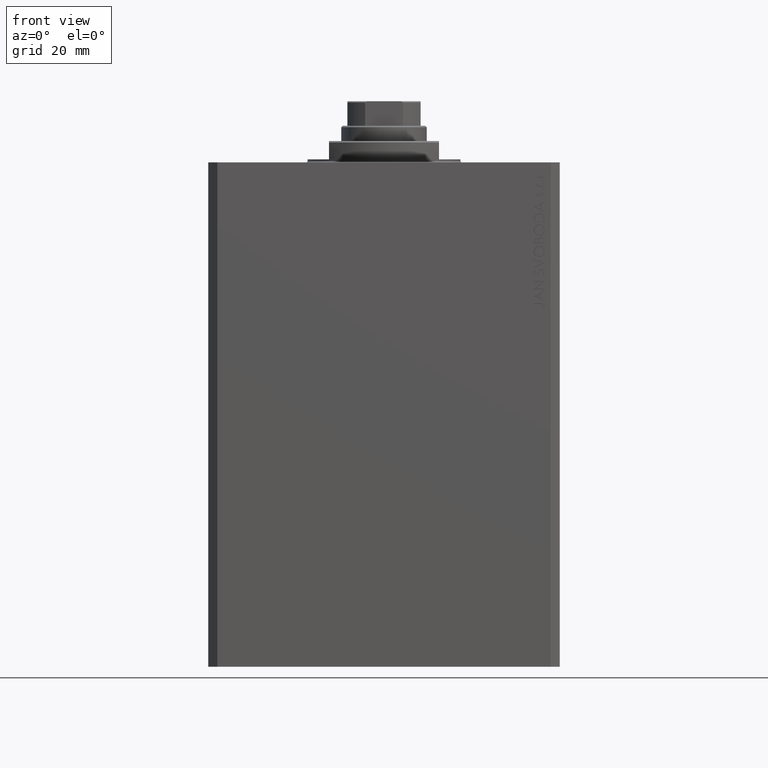
[diagram: clean part render]
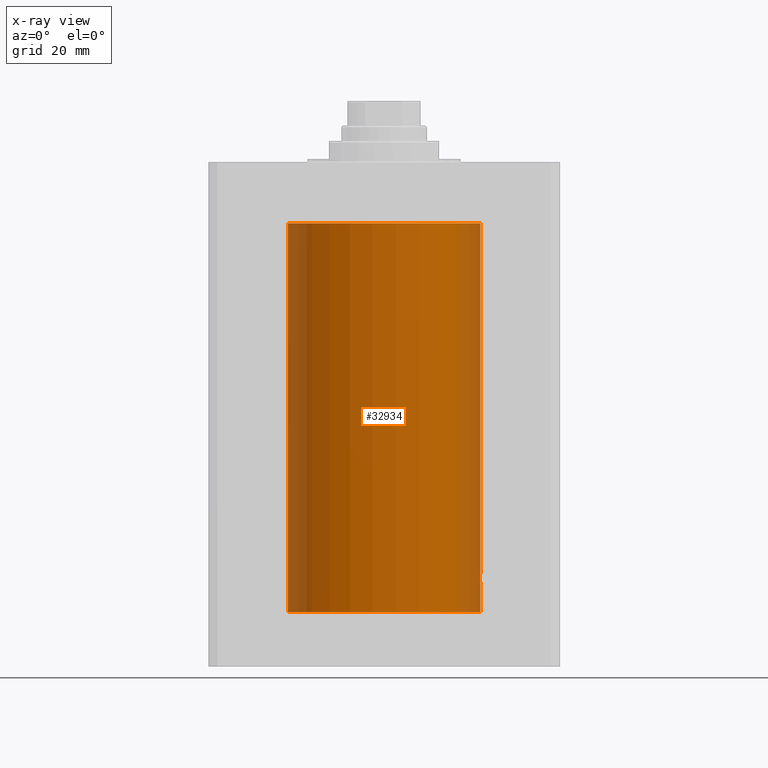
[diagram: x-ray — body ghosted, one internal face saturated and labeled with its STEP entity id]
A machine part, front view, then the same camera in x-ray: the body is ghosted and one INTERNAL B-rep face — a face not visible from any outside direction — is saturated and labeled: STEP entity #32934.
In plain terms, the highlighted cylindrical surface (partial cylindrical patch) has radius 31.5 mm, axis along (0, 0, 1).
Its self-contained STEP definition (entity closure, byte-faithful):
#5 = ORIENTED_EDGE ( 'NONE', *, *, #20285, .T. ) ;
#96 = LINE ( 'NONE', #25476, #17125 ) ;
#360 = DIRECTION ( 'NONE',  ( 0.000000000000000000, 0.000000000000000000, 1.000000000000000000 ) ) ;
#407 = CARTESIAN_POINT ( 'NONE',  ( -31.45217525070748721, -1.736644018522236488, -27.99943934275634305 ) ) ;
#1467 = VERTEX_POINT ( 'NONE', #9283 ) ;
#1977 = CARTESIAN_POINT ( 'NONE',  ( 31.50000000000000000, -0.2641644753935966095, -137.9999999999999432 ) ) ;
#2424 = CARTESIAN_POINT ( 'NONE',  ( -31.50000000000000000, 3.857637417314162689E-15, -147.0999999999999943 ) ) ;
#2546 = DIRECTION ( 'NONE',  ( -0.000000000000000000, -0.000000000000000000, 1.000000000000000000 ) ) ;
#3036 = CIRCLE ( 'NONE', #39714, 31.50000000000000000 ) ;
#3475 = VERTEX_POINT ( 'NONE', #26924 ) ;
#3476 = CARTESIAN_POINT ( 'NONE',  ( -31.50000000000000000, 1.397936845058764387E-14, -27.00000000000000000 ) ) ;
#3713 = VERTEX_POINT ( 'NONE', #11319 ) ;
#3765 = CARTESIAN_POINT ( 'NONE',  ( -31.46404664885025326, -1.507410583550298888, -27.67911419226929226 ) ) ;
#3802 = DIRECTION ( 'NONE',  ( 1.000000000000000000, 0.000000000000000000, 0.000000000000000000 ) ) ;
#3936 = ORIENTED_EDGE ( 'NONE', *, *, #43919, .F. ) ;
#5643 = CARTESIAN_POINT ( 'NONE',  ( 31.48485268472538223, -1.006016242866562438, -134.2518986956447122 ) ) ;
#5659 = LINE ( 'NONE', #20034, #16552 ) ;
#6437 = CARTESIAN_POINT ( 'NONE',  ( 31.50000000000000000, -8.369814204394935255E-24, -134.0000000000000000 ) ) ;
#7389 = CYLINDRICAL_SURFACE ( 'NONE', #11340, 31.50000000000000000 ) ;
#7589 = CARTESIAN_POINT ( 'NONE',  ( -31.44875398393470789, -1.796776260624483479, -29.88811294768924753 ) ) ;
#7818 = CARTESIAN_POINT ( 'NONE',  ( -31.45983898797870992, -1.591788710457754608, -27.78210723905913682 ) ) ;
#8045 = CARTESIAN_POINT ( 'NONE',  ( -31.45225007357219127, -1.735298606275290645, -30.00291301244936193 ) ) ;
#8285 = CARTESIAN_POINT ( 'NONE',  ( -31.43643703231417774, -2.000106678383414049, -28.86966175168553406 ) ) ;
#8590 = B_SPLINE_CURVE_WITH_KNOTS ( 'NONE', 3,
 ( #12749, #20161, #38819, #42645, #12990, #17281, #16340, #13221, #9169, #24705, #20641, #34751, #35230, #23996, #1977, #16582 ),
 .UNSPECIFIED., .F., .F.,
 ( 4, 2, 2, 2, 2, 2, 2, 4 ),
 ( 0.009382615871551879677, 0.009773230820200042371, 0.01016384576884820333, 0.01055446071749636602, 0.01094507566614452698, 0.01133569061479268794, 0.01172630556344085064, 0.01250753546073714306 ),
 .UNSPECIFIED. ) ;
#9169 = CARTESIAN_POINT ( 'NONE',  ( 31.46407444263389053, -1.506829553733668670, -137.3215416408483520 ) ) ;
#9283 = CARTESIAN_POINT ( 'NONE',  ( 31.50000000000000000, 0.000000000000000000, -19.99999999999998934 ) ) ;
#9476 = CARTESIAN_POINT ( 'NONE',  ( 31.43644381923633446, -1.999999999999602318, -135.8679496573550409 ) ) ;
#9536 = ORIENTED_EDGE ( 'NONE', *, *, #17535, .T. ) ;
#9660 = CARTESIAN_POINT ( 'NONE',  ( -31.50000000000000000, 3.857637417314162689E-15, -147.0999999999999943 ) ) ;
#9719 = CARTESIAN_POINT ( 'NONE',  ( 31.44872486828352720, -1.797284557493793455, -135.1129049671613700 ) ) ;
#10104 = VECTOR ( 'NONE', #24519, 1000.000000000000000 ) ;
#10652 = ORIENTED_EDGE ( 'NONE', *, *, #44055, .F. ) ;
#10819 = B_SPLINE_CURVE_WITH_KNOTS ( 'NONE', 3,
 ( #11882, #40600, #19289, #43732, #25792, #26492, #18599, #8045, #7589, #15699, #36771, #40829, #29619, #8285, #36531, #29386, #11648, #33198, #407, #7818, #3765, #37233, #44208, #26253, #40126, #43974, #18370, #32968 ),
 .UNSPECIFIED., .F., .F.,
 ( 4, 2, 2, 2, 2, 2, 2, 2, 2, 2, 2, 2, 2, 4 ),
 ( 0.006254484652153074857, 0.007036116003226081106, 0.007817747354299088222, 0.008208563029835592648, 0.008599378705372095338, 0.008990194380908599764, 0.009381010056445102455, 0.009771825731981605145, 0.01016264140751810957, 0.01055345708305461400, 0.01094427275859111495, 0.01133508843412761938, 0.01172590410966412207, 0.01250753546073712918 ),
 .UNSPECIFIED. ) ;
#11109 = DIRECTION ( 'NONE',  ( -0.000000000000000000, -0.000000000000000000, 1.000000000000000000 ) ) ;
#11319 = CARTESIAN_POINT ( 'NONE',  ( 31.50000000000000000, 0.000000000000000000, -147.0999999999999943 ) ) ;
#11340 = AXIS2_PLACEMENT_3D ( 'NONE', #11687, #26068, #3802 ) ;
#11648 = CARTESIAN_POINT ( 'NONE',  ( -31.44278916585178862, -1.898297317516837390, -28.35682010174544843 ) ) ;
#11687 = CARTESIAN_POINT ( 'NONE',  ( 0.000000000000000000, 0.000000000000000000, -147.0999999999999943 ) ) ;
#11882 = CARTESIAN_POINT ( 'NONE',  ( -31.50000000000000000, 3.857637408943224358E-15, -30.99999999999999645 ) ) ;
#12749 = CARTESIAN_POINT ( 'NONE',  ( 31.43644381923632736, -1.999999999999602318, -136.0000000000000000 ) ) ;
#12837 = CARTESIAN_POINT ( 'NONE',  ( 31.50000000000000711, -0.2611678296587149894, -134.0000000000000853 ) ) ;
#12963 = VERTEX_POINT ( 'NONE', #3476 ) ;
#12990 = CARTESIAN_POINT ( 'NONE',  ( 31.44281458444440958, -1.897877411374707002, -136.6444022018092426 ) ) ;
#13070 = CARTESIAN_POINT ( 'NONE',  ( 31.45990289235032478, -1.590535423469526366, -134.7804472770964423 ) ) ;
#13221 = CARTESIAN_POINT ( 'NONE',  ( 31.45986829311680921, -1.591210340082439334, -137.2186416612216533 ) ) ;
#13543 = CARTESIAN_POINT ( 'NONE',  ( 31.43644381923632736, -1.999999999999602318, -136.0000000000000000 ) ) ;
#13793 = EDGE_CURVE ( 'NONE', #35819, #45264, #5659, .T. ) ;
#15699 = CARTESIAN_POINT ( 'NONE',  ( -31.44285297002221569, -1.897242519647255321, -29.64623553000395972 ) ) ;
#16109 = ORIENTED_EDGE ( 'NONE', *, *, #38223, .T. ) ;
#16340 = CARTESIAN_POINT ( 'NONE',  ( 31.45220500162104571, -1.736105959509580687, -137.0014858672019784 ) ) ;
#16552 = VECTOR ( 'NONE', #2546, 1000.000000000000000 ) ;
#16582 = CARTESIAN_POINT ( 'NONE',  ( 31.50000000000000000, -5.244345426788806144E-15, -138.0000000000000000 ) ) ;
#17125 = VECTOR ( 'NONE', #11109, 1000.000000000000000 ) ;
#17281 = CARTESIAN_POINT ( 'NONE',  ( 31.44871262113419519, -1.797498854984190153, -136.8866739720062640 ) ) ;
#17535 = EDGE_CURVE ( 'NONE', #3475, #23004, #8590, .T. ) ;
#17808 = CARTESIAN_POINT ( 'NONE',  ( 31.50000000000000000, 0.000000000000000000, -147.0999999999999943 ) ) ;
#18370 = CARTESIAN_POINT ( 'NONE',  ( -31.50000000000000000, -0.2643002226642394148, -26.99999999999999289 ) ) ;
#18599 = CARTESIAN_POINT ( 'NONE',  ( -31.45993227857327312, -1.589955021705260263, -30.22030274622138535 ) ) ;
#19116 = VECTOR ( 'NONE', #35206, 1000.000000000000000 ) ;
#19289 = CARTESIAN_POINT ( 'NONE',  ( -31.49655899566844397, -0.5241554089610698242, -30.94759297982581714 ) ) ;
#19634 = CARTESIAN_POINT ( 'NONE',  ( -31.50000000000000000, 3.857637408943224358E-15, -30.99999999999999645 ) ) ;
#20034 = CARTESIAN_POINT ( 'NONE',  ( -31.50000000000000000, 3.857637417314162689E-15, -147.0999999999999943 ) ) ;
#20161 = CARTESIAN_POINT ( 'NONE',  ( 31.43644381923634157, -1.999999999999603206, -136.1319147674916223 ) ) ;
#20285 = EDGE_CURVE ( 'NONE', #40481, #3475, #39180, .T. ) ;
#20641 = CARTESIAN_POINT ( 'NONE',  ( 31.47648100377268321, -1.221906821746976179, -137.5887658252282222 ) ) ;
#21700 = CARTESIAN_POINT ( 'NONE',  ( 31.50000000000000000, -5.244345426788806144E-15, -138.0000000000000000 ) ) ;
#22427 = ORIENTED_EDGE ( 'NONE', *, *, #13793, .T. ) ;
#23004 = VERTEX_POINT ( 'NONE', #21700 ) ;
#23810 = CARTESIAN_POINT ( 'NONE',  ( 0.000000000000000000, 0.000000000000000000, -147.0999999999999943 ) ) ;
#23996 = CARTESIAN_POINT ( 'NONE',  ( 31.49651623355826402, -0.5266027764248490950, -137.9469130230595226 ) ) ;
#24519 = DIRECTION ( 'NONE',  ( -0.000000000000000000, -0.000000000000000000, 1.000000000000000000 ) ) ;
#24705 = CARTESIAN_POINT ( 'NONE',  ( 31.47236300924845764, -1.322453193766295554, -137.5060296022319619 ) ) ;
#24882 = FACE_OUTER_BOUND ( 'NONE', #39576, .T. ) ;
#25467 = DIRECTION ( 'NONE',  ( 1.000000000000000000, 0.000000000000000000, 0.000000000000000000 ) ) ;
#25476 = CARTESIAN_POINT ( 'NONE',  ( 31.50000000000000000, 0.000000000000000000, -147.0999999999999943 ) ) ;
#25792 = CARTESIAN_POINT ( 'NONE',  ( -31.47656828341634849, -1.228722494291965672, -30.59944629484386525 ) ) ;
#26068 = DIRECTION ( 'NONE',  ( -0.000000000000000000, -0.000000000000000000, 1.000000000000000000 ) ) ;
#26253 = CARTESIAN_POINT ( 'NONE',  ( -31.48417770553094286, -1.004227724430747370, -27.26541759009648302 ) ) ;
#26444 = CARTESIAN_POINT ( 'NONE',  ( 0.000000000000000000, 0.000000000000000000, -19.99999999999998934 ) ) ;
#26492 = CARTESIAN_POINT ( 'NONE',  ( -31.46413940124423547, -1.505476405065120815, -30.32307885188653884 ) ) ;
#26924 = CARTESIAN_POINT ( 'NONE',  ( 31.43644381923632736, -1.999999999999602318, -136.0000000000000000 ) ) ;
#27452 = CARTESIAN_POINT ( 'NONE',  ( 31.49655533253665496, -0.5244229631002984560, -134.0524611924345493 ) ) ;
#27683 = CARTESIAN_POINT ( 'NONE',  ( 31.44282756203102380, -1.897662384614853925, -135.3549830607569504 ) ) ;
#27849 = ORIENTED_EDGE ( 'NONE', *, *, #34101, .T. ) ;
#28287 = LINE ( 'NONE', #2424, #19116 ) ;
#29386 = CARTESIAN_POINT ( 'NONE',  ( -31.44042406599102080, -1.936589180163527990, -28.48366908012522458 ) ) ;
#29619 = CARTESIAN_POINT ( 'NONE',  ( -31.43645069034283068, -1.999891998387147041, -29.13359183610791447 ) ) ;
#31501 = CARTESIAN_POINT ( 'NONE',  ( 31.50000000000000000, -8.369814204394935255E-24, -134.0000000000000000 ) ) ;
#32106 = ORIENTED_EDGE ( 'NONE', *, *, #44845, .F. ) ;
#32888 = DIRECTION ( 'NONE',  ( 0.000000000000000000, 0.000000000000000000, 1.000000000000000000 ) ) ;
#32934 = ADVANCED_FACE ( 'NONE', ( #24882 ), #7389, .F. ) ;
#32968 = CARTESIAN_POINT ( 'NONE',  ( -31.50000000000000000, 1.397936845058764387E-14, -27.00000000000000000 ) ) ;
#33198 = CARTESIAN_POINT ( 'NONE',  ( -31.44868351550920238, -1.798006778418087315, -28.11434503785448413 ) ) ;
#33840 = DIRECTION ( 'NONE',  ( 1.000000000000000000, 0.000000000000000000, 0.000000000000000000 ) ) ;
#34101 = EDGE_CURVE ( 'NONE', #45264, #12963, #10819, .T. ) ;
#34751 = CARTESIAN_POINT ( 'NONE',  ( 31.48419274771890031, -1.003752801430397357, -137.7348525707003546 ) ) ;
#34838 = CARTESIAN_POINT ( 'NONE',  ( 31.47654718428505305, -1.229266569362844841, -134.4009491226104558 ) ) ;
#35206 = DIRECTION ( 'NONE',  ( -0.000000000000000000, -0.000000000000000000, 1.000000000000000000 ) ) ;
#35230 = CARTESIAN_POINT ( 'NONE',  ( 31.48773138987390752, -0.8872616597623516066, -137.7971399355613187 ) ) ;
#35819 = VERTEX_POINT ( 'NONE', #9660 ) ;
#36531 = CARTESIAN_POINT ( 'NONE',  ( -31.43726516414084671, -1.987209626982197275, -28.73928335309295790 ) ) ;
#36771 = CARTESIAN_POINT ( 'NONE',  ( -31.44046947083549526, -1.935854384198227640, -29.51909212032544971 ) ) ;
#37233 = CARTESIAN_POINT ( 'NONE',  ( -31.47233969101135287, -1.323008904738059099, -27.49445245095093426 ) ) ;
#37707 = CARTESIAN_POINT ( 'NONE',  ( 31.43727534210787056, -1.987050037257516610, -135.7380122185808489 ) ) ;
#37710 = EDGE_CURVE ( 'NONE', #41608, #1467, #3036, .T. ) ;
#38223 = EDGE_CURVE ( 'NONE', #12963, #41608, #28287, .T. ) ;
#38819 = CARTESIAN_POINT ( 'NONE',  ( 31.43727763971487832, -1.987013243169727161, -136.2621767881957169 ) ) ;
#39130 = AXIS2_PLACEMENT_3D ( 'NONE', #23810, #32888, #25467 ) ;
#39180 = B_SPLINE_CURVE_WITH_KNOTS ( 'NONE', 3,
 ( #31501, #12837, #27452, #5643, #34838, #45863, #13070, #42488, #9719, #27683, #42252, #37707, #9476, #13543 ),
 .UNSPECIFIED., .F., .F.,
 ( 4, 2, 2, 2, 2, 2, 4 ),
 ( 0.006254484652153862421, 0.007036517457003337028, 0.007818550261852812502, 0.008209566664277578862, 0.008600583066702345222, 0.008991599469127111582, 0.009382615871551879677 ),
 .UNSPECIFIED. ) ;
#39576 = EDGE_LOOP ( 'NONE', ( #3936, #22427, #27849, #16109, #40910, #10652, #5, #9536, #32106 ) ) ;
#39714 = AXIS2_PLACEMENT_3D ( 'NONE', #26444, #360, #33840 ) ;
#40126 = CARTESIAN_POINT ( 'NONE',  ( -31.48771967710822750, -0.8876842815627609129, -27.20306391354861475 ) ) ;
#40481 = VERTEX_POINT ( 'NONE', #6437 ) ;
#40600 = CARTESIAN_POINT ( 'NONE',  ( -31.50000000000000711, -0.2610337600763850685, -30.99999999999999645 ) ) ;
#40829 = CARTESIAN_POINT ( 'NONE',  ( -31.43728786348615856, -1.986852921497533453, -29.26344694824611992 ) ) ;
#40910 = ORIENTED_EDGE ( 'NONE', *, *, #37710, .T. ) ;
#41608 = VERTEX_POINT ( 'NONE', #46338 ) ;
#42197 = CIRCLE ( 'NONE', #39130, 31.50000000000000000 ) ;
#42252 = CARTESIAN_POINT ( 'NONE',  ( 31.44044773446764296, -1.936206353227576837, -135.4822062129580900 ) ) ;
#42488 = CARTESIAN_POINT ( 'NONE',  ( 31.45222028857340391, -1.735837506356498583, -134.9980120116594264 ) ) ;
#42645 = CARTESIAN_POINT ( 'NONE',  ( 31.44044572002255933, -1.936238609098681396, -136.5176276127064057 ) ) ;
#43653 = LINE ( 'NONE', #17808, #10104 ) ;
#43732 = CARTESIAN_POINT ( 'NONE',  ( -31.48486704052294627, -1.005542093080670885, -30.74835419948385606 ) ) ;
#43919 = EDGE_CURVE ( 'NONE', #35819, #3713, #42197, .T. ) ;
#43974 = CARTESIAN_POINT ( 'NONE',  ( -31.49651256782642150, -0.5268694869510501810, -27.05314117773801641 ) ) ;
#44055 = EDGE_CURVE ( 'NONE', #40481, #1467, #43653, .T. ) ;
#44208 = CARTESIAN_POINT ( 'NONE',  ( -31.47646037642386219, -1.222440709149324567, -27.41163978522611799 ) ) ;
#44845 = EDGE_CURVE ( 'NONE', #3713, #23004, #96, .T. ) ;
#45264 = VERTEX_POINT ( 'NONE', #19634 ) ;
#45863 = CARTESIAN_POINT ( 'NONE',  ( 31.46411164879456379, -1.506057066634442165, -134.6775752899322072 ) ) ;
#46338 = CARTESIAN_POINT ( 'NONE',  ( -31.50000000000000000, 3.857637417314162689E-15, -19.99999999999998934 ) ) ;